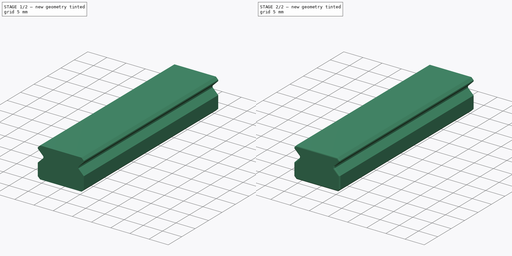
[diagram: build sequence overview — one tinted view per stage of 2, left to right]
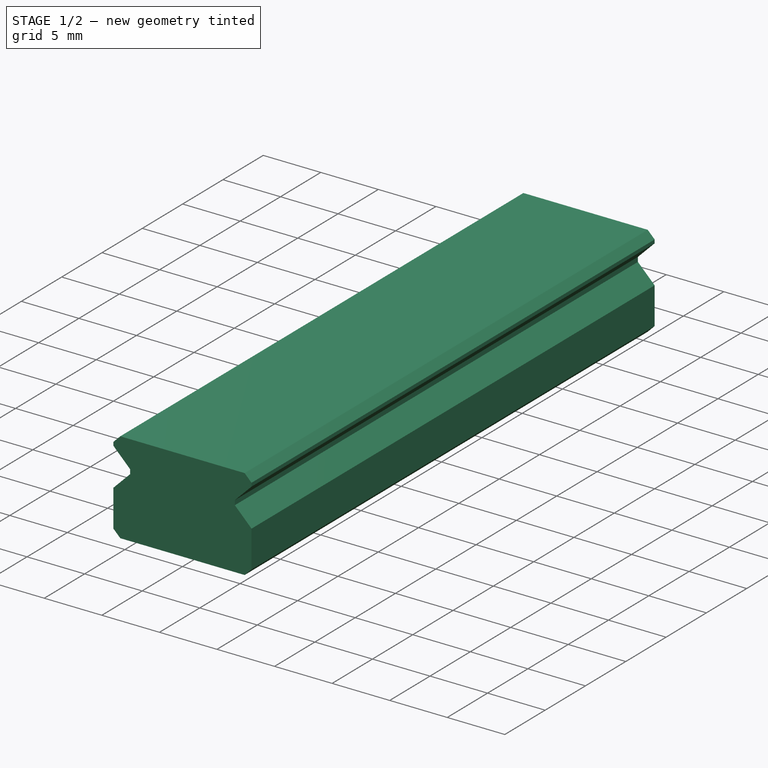
[diagram: stage 1 of 2 — iso view after this stage's code; geometry added in this stage tinted green]
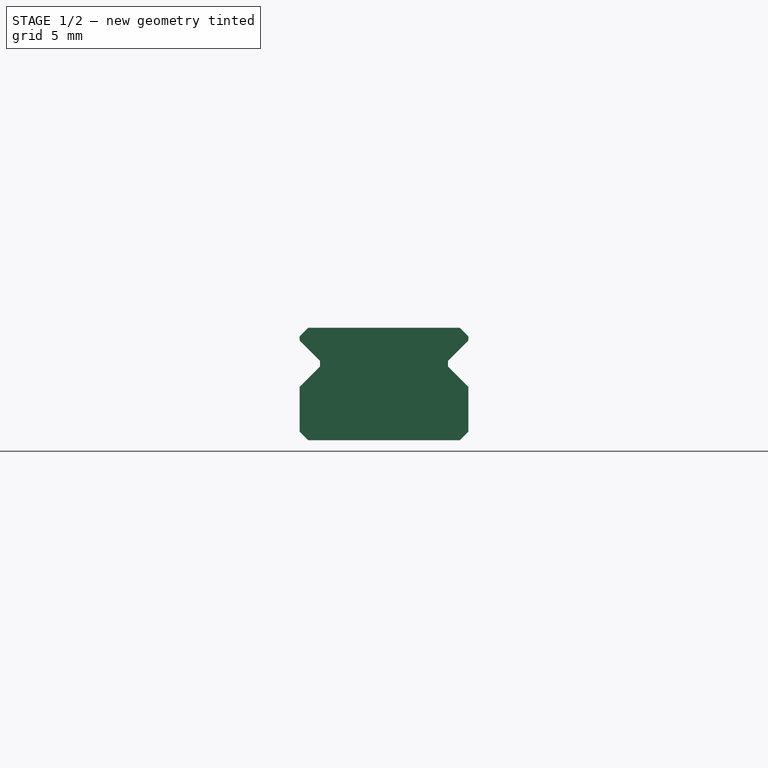
[diagram: stage 1 of 2 — front view after this stage's code; geometry added in this stage tinted green]
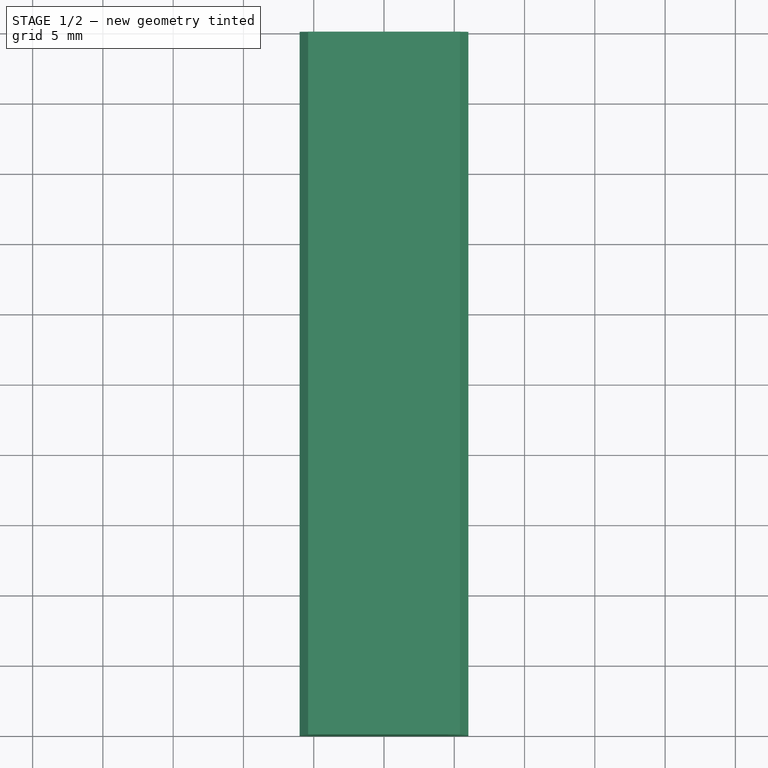
[diagram: stage 1 of 2 — top view after this stage's code; geometry added in this stage tinted green]
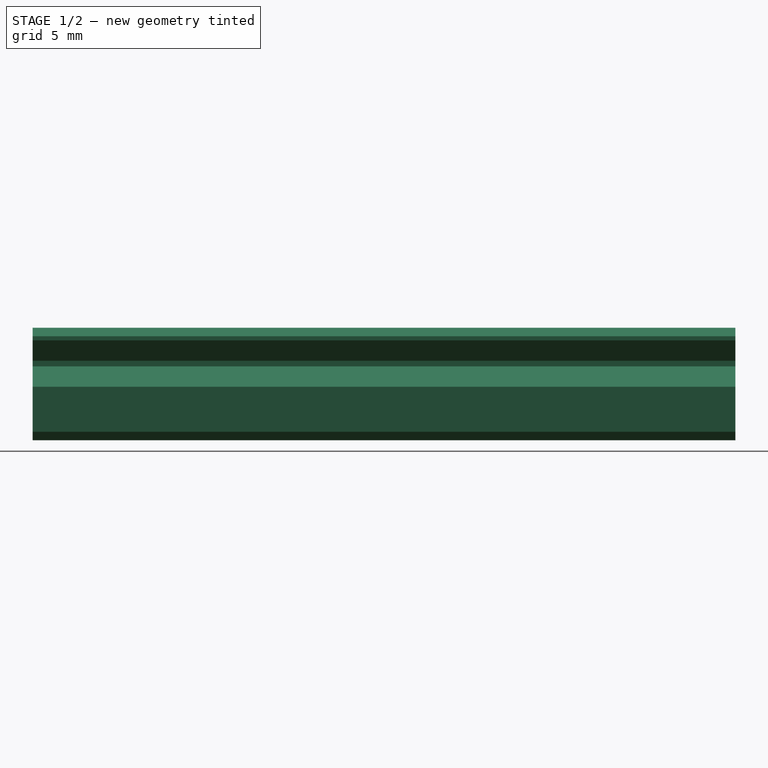
[diagram: stage 1 of 2 — right view after this stage's code; geometry added in this stage tinted green]
FCSTD DOCUMENT  (FreeCAD 0.19R24366 (Git))
Label: MGNBallSaver
License: All rights reserved
LicenseURL: http://en.wikipedia.org/wiki/All_rights_reserved
objects: Sketcher::SketchObject×1, PartDesign::Pad×1, PartDesign::Fillet×1, PartDesign::Body×1
note: 6 computed .brp shape members not serialized (recipe doc carries the construction recipe); baked Part::Feature solids carry a one-line shape summary decoded from their .brp

FEATURE [Sketcher::SketchObject] Sketch
  FullyConstrained = true
  MapMode = 5
  Placement = pos=(0,0,0) rot=(1,0,0;1.5708rad)
  Support = -> [XZ_Plane001]
  sketch-geometry (19):
    g0: LineSegment StartX=-5.4 StartY=0 StartZ=0 EndX=5.4 EndY=0 EndZ=0
    g1: LineSegment StartX=5.4 StartY=0 StartZ=0 EndX=6 EndY=0.6 EndZ=0
    g2: LineSegment StartX=6 StartY=0.6 StartZ=0 EndX=6 EndY=3.8 EndZ=0
    g3: LineSegment StartX=6 StartY=3.8 StartZ=0 EndX=4.55 EndY=5.25 EndZ=0
    g4: LineSegment StartX=4.55 StartY=5.25 StartZ=0 EndX=4.55 EndY=5.65 EndZ=0
    g5: LineSegment StartX=4.55 StartY=5.65 StartZ=0 EndX=6 EndY=7.1 EndZ=0
    g6: LineSegment StartX=6 StartY=7.1 StartZ=0 EndX=6 EndY=7.4 EndZ=0
    g7: LineSegment StartX=6 StartY=7.4 StartZ=0 EndX=5.4 EndY=8 EndZ=0
    g8: LineSegment StartX=5.4 StartY=8 StartZ=0 EndX=-5.4 EndY=8 EndZ=0
    g9: LineSegment StartX=-5.4 StartY=8 StartZ=0 EndX=-6 EndY=7.4 EndZ=0
    g10: LineSegment StartX=-6 StartY=7.4 StartZ=0 EndX=-6 EndY=7.1 EndZ=0
    g11: LineSegment StartX=-6 StartY=7.1 StartZ=0 EndX=-4.55 EndY=5.65 EndZ=0
    g12: LineSegment StartX=-4.55 StartY=5.65 StartZ=0 EndX=-4.55 EndY=5.25 EndZ=0
    g13: LineSegment StartX=-4.55 StartY=5.25 StartZ=0 EndX=-6 EndY=3.8 EndZ=0
    g14: LineSegment StartX=-6 StartY=3.8 StartZ=0 EndX=-6 EndY=0.6 EndZ=0
    g15: LineSegment StartX=-6 StartY=0.6 StartZ=0 EndX=-5.4 EndY=0 EndZ=0
    g16: LineSegment StartX=-4.55 StartY=5.65 StartZ=0 EndX=4.55 EndY=5.65 EndZ=0
    g17: LineSegment StartX=0 StartY=8 StartZ=0 EndX=0 EndY=0 EndZ=0
    g18: GeomPoint X=-4.55 Y=5.45 Z=0
  constraints (53):
    c: Horizontal(g0)
    c: Coincident(g0,g1)
    c: Coincident(g1,g2)
    c: Vertical(g2)
    c: Coincident(g2,g3)
    c: Coincident(g3,g4)
    c: Coincident(g4,g5)
    c: Coincident(g5,g6)
    c: Vertical(g6)
    c: Coincident(g6,g7)
    c: Coincident(g7,g8)
    c: Horizontal(g8)
    c: Coincident(g8,g9)
    c: Coincident(g9,g10)
    c: Vertical(g10)
    c: Coincident(g10,g11)
    c: Coincident(g11,g12)
    c: Vertical(g12)
    c: Coincident(g12,g13)
    c: Coincident(g13,g14)
    c: Vertical(g14)
    c: Coincident(g14,g15)
    c: Coincident(g15,g0)
    c: Vertical(g4)
    c: Coincident(g16,g11)
    c: Horizontal(g16)
    c: Equal(g12,g4)
    c: Coincident(g16,g4)
    c: DistanceY(g12,g12) = 0.4
    c: DistanceX(g16,g16) = 9.1
    c: PointOnObject(g17,g8)
    c: PointOnObject(g17,g0)
    c: Symmetric(g11,g4,g17)
    c: Equal(g11,g5)
    c: Equal(g13,g3)
    c: PointOnObject(g10,g14)
    c: PointOnObject(g5,g2)
    c: Angle(g16,g9) = 0.785398
    c: Parallel(g9,g13)
    c: Parallel(g13,g5)
    c: Parallel(g5,g1)
    c: Perpendicular(g9,g7)
    c: DistanceX(g8,g8) = 10.8
    c: Equal(g9,g7)
    c: Parallel(g7,g11)
    c: Parallel(g3,g15)
    c: DistanceX(g9,g6) = 12
    c: Equal(g1,g15)
    c: DistanceY(g0,g8) = 8
    c: Coincident(g17,g-1)
    c: Symmetric(g11,g12,g18)
    c: DistanceY(g0,g18) = 5.45
    c: Equal(g8,g0)
FEATURE [PartDesign::Pad] Pad
  Direction = (1,1,1)
  Length = 50
  Length2 = 100
  Placement = pos=(0,0,0) rot=(1,0,0;1.5708rad)
  Profile = -> Sketch
  Type = 0
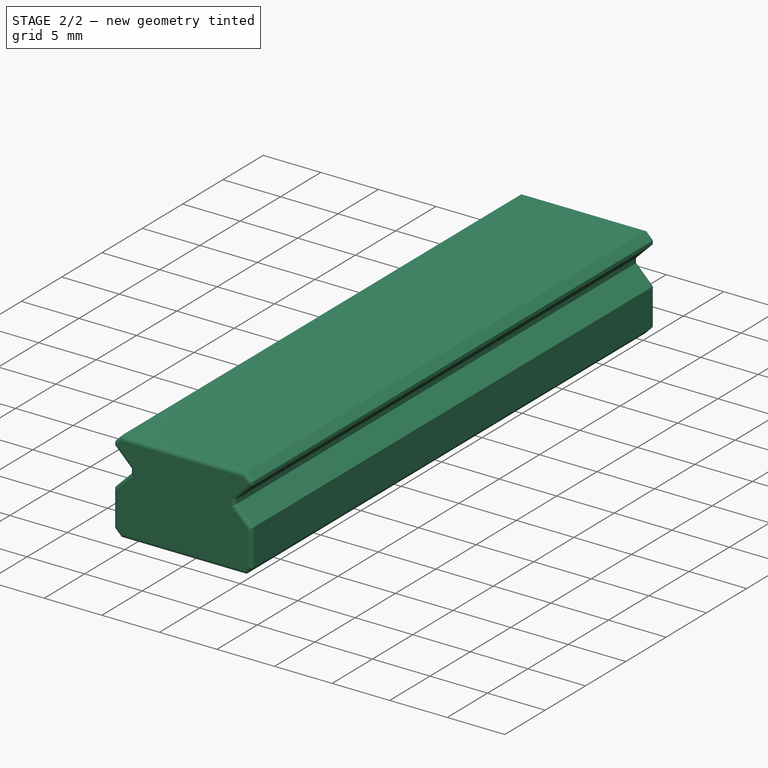
[diagram: stage 2 of 2 — iso view after this stage's code; geometry added in this stage tinted green]
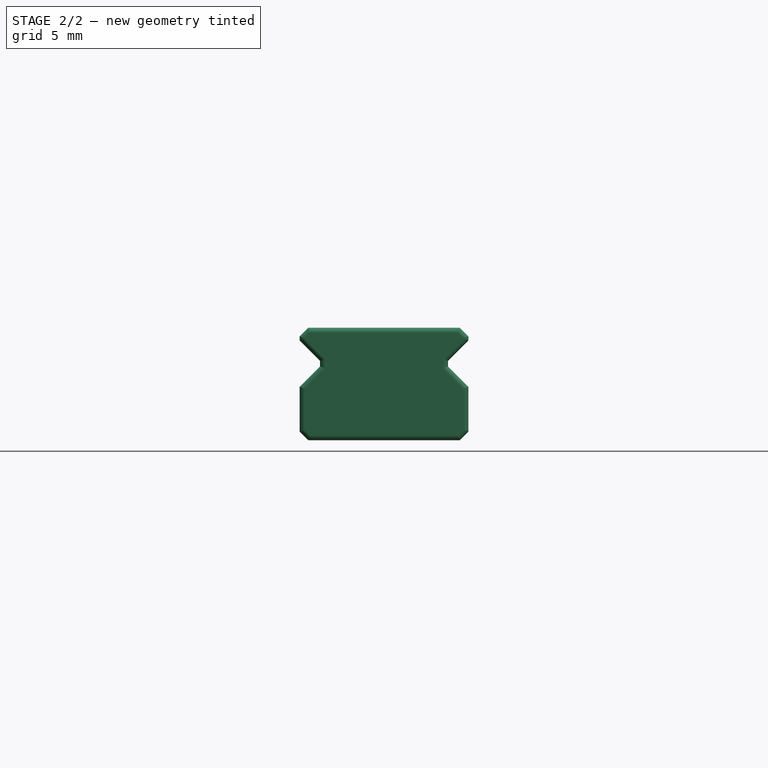
[diagram: stage 2 of 2 — front view after this stage's code; geometry added in this stage tinted green]
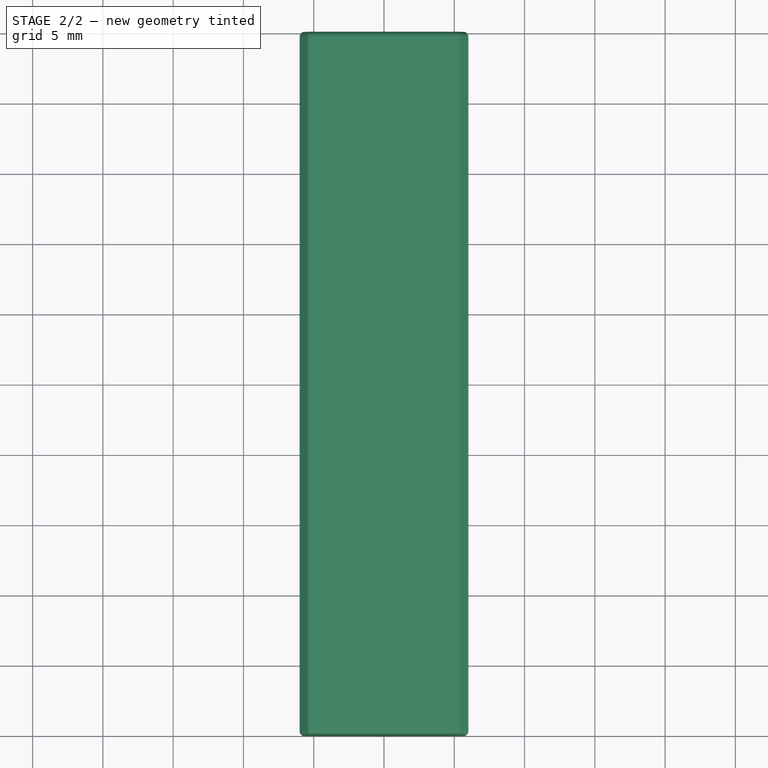
[diagram: stage 2 of 2 — top view after this stage's code; geometry added in this stage tinted green]
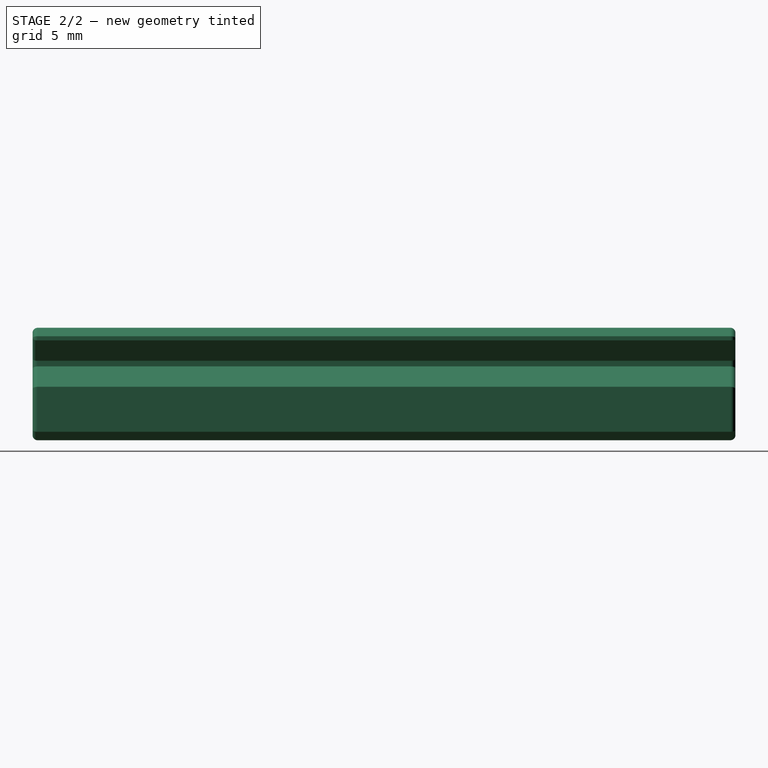
[diagram: stage 2 of 2 — right view after this stage's code; geometry added in this stage tinted green]
FEATURE [PartDesign::Fillet] Fillet
  Base = -> Pad [Face17,Face18]
  BaseFeature = -> Pad
  Placement = pos=(0,0,0) rot=(1,0,0;1.5708rad)
  Radius = 0.35
  SupportTransform = false
FEATURE [PartDesign::Body] Body  label="MGN12"
  Group = -> [Sketch,Pad,Fillet]
  Origin = -> Origin001
  Tip = -> Fillet
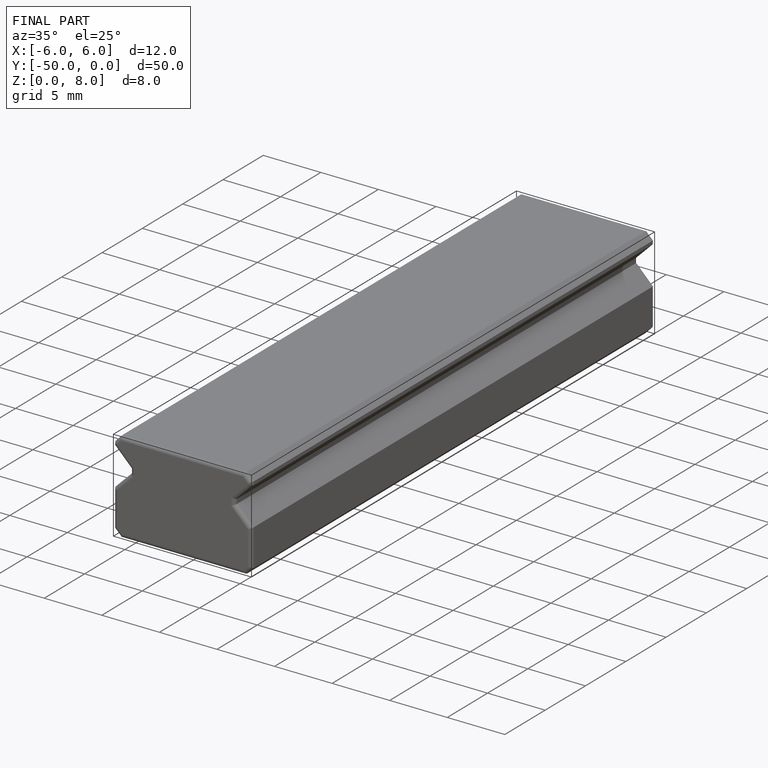
[diagram: finished part — iso view with bounding-box wireframe]
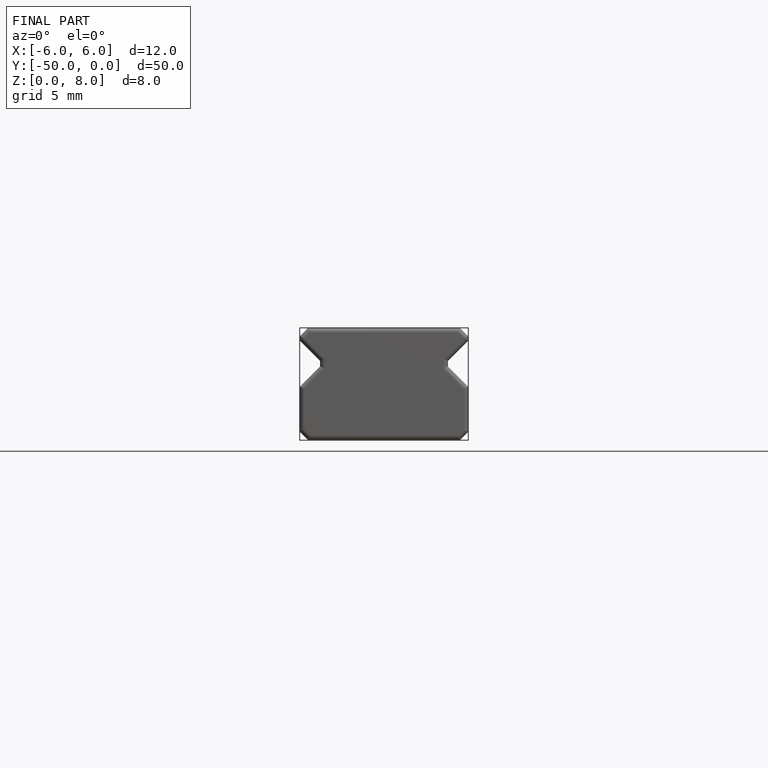
[diagram: finished part — front view with bounding-box wireframe]
